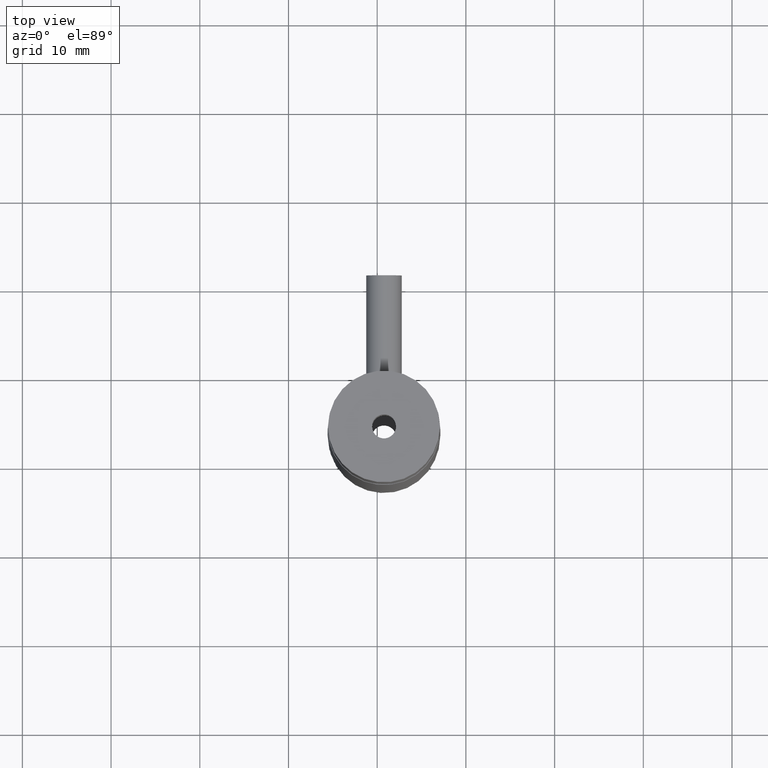
[diagram: clean part render]
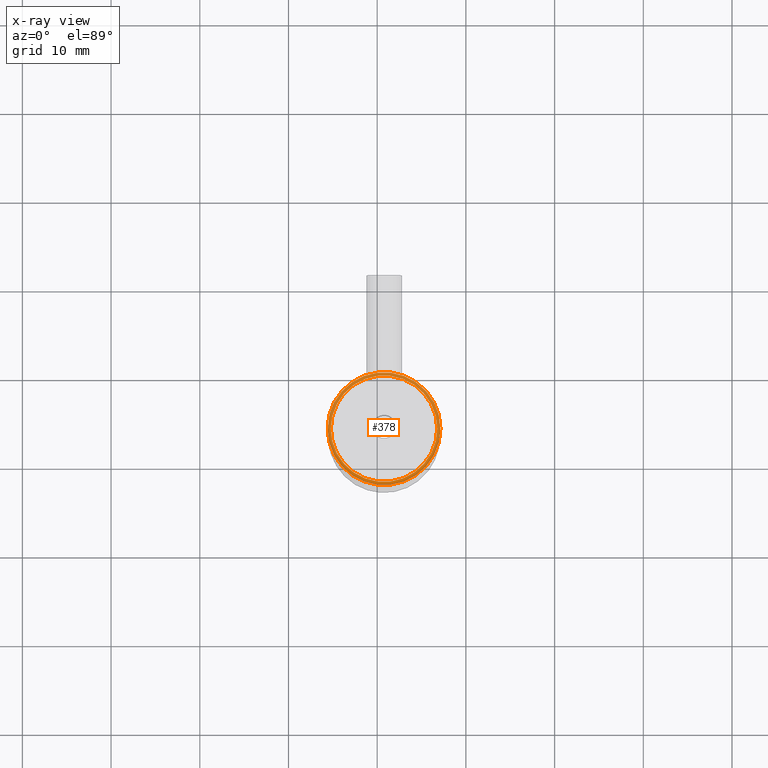
[diagram: x-ray — body ghosted, one internal face saturated and labeled with its STEP entity id]
A machine part, top view, then the same camera in x-ray: the body is ghosted and one INTERNAL B-rep face — a face not visible from any outside direction — is saturated and labeled: STEP entity #378.
In plain terms, the highlighted planar face has unit normal (-0, -0, 1).
Its self-contained STEP definition (entity closure, byte-faithful):
#327 = VERTEX_POINT ( 'NONE', #1788 ) ;
#329 = EDGE_CURVE ( 'NONE', #330, #327, #1787, .T. ) ;
#330 = VERTEX_POINT ( 'NONE', #1782 ) ;
#378 = ADVANCED_FACE ( 'NONE', ( #1948, #1947 ), #1985, .T. ) ;
#379 = EDGE_LOOP ( 'NONE', ( #380, #384 ) ) ;
#380 = ORIENTED_EDGE ( 'NONE', *, *, #381, .F. ) ;
#381 = EDGE_CURVE ( 'NONE', #382, #383, #1980, .T. ) ;
#382 = VERTEX_POINT ( 'NONE', #1975 ) ;
#383 = VERTEX_POINT ( 'NONE', #1974 ) ;
#384 = ORIENTED_EDGE ( 'NONE', *, *, #385, .F. ) ;
#385 = EDGE_CURVE ( 'NONE', #383, #382, #1973, .T. ) ;
#386 = EDGE_LOOP ( 'NONE', ( #387, #388 ) ) ;
#387 = ORIENTED_EDGE ( 'NONE', *, *, #329, .T. ) ;
#388 = ORIENTED_EDGE ( 'NONE', *, *, #389, .T. ) ;
#389 = EDGE_CURVE ( 'NONE', #327, #330, #1967, .T. ) ;
#1782 = CARTESIAN_POINT ( 'NONE',  ( 0.2801849550582926600, -0.2577627768316031500, -0.8606097516386622700 ) ) ;
#1783 = DIRECTION ( 'NONE',  ( 1.000000000000000000, 0.0000000000000000000, 0.0000000000000000000 ) ) ;
#1784 = DIRECTION ( 'NONE',  ( 0.0000000000000000000, -4.930380657631323800E-032, 1.000000000000000000 ) ) ;
#1785 = CARTESIAN_POINT ( 'NONE',  ( 0.03018495505829254000, -0.2577627768316031500, -0.8606097516386622700 ) ) ;
#1786 = AXIS2_PLACEMENT_3D ( 'NONE', #1785, #1784, #1783 ) ;
#1787 = CIRCLE ( 'NONE', #1786, 0.2500000000000001100 ) ;
#1788 = CARTESIAN_POINT ( 'NONE',  ( -0.2198150449417075600, -0.2577627768316031500, -0.8606097516386622700 ) ) ;
#1947 = FACE_OUTER_BOUND ( 'NONE', #386, .T. ) ;
#1948 = FACE_BOUND ( 'NONE', #379, .T. ) ;
#1963 = DIRECTION ( 'NONE',  ( 1.000000000000000000, 0.0000000000000000000, 0.0000000000000000000 ) ) ;
#1964 = DIRECTION ( 'NONE',  ( 0.0000000000000000000, -4.930380657631323800E-032, 1.000000000000000000 ) ) ;
#1965 = CARTESIAN_POINT ( 'NONE',  ( 0.03018495505829254000, -0.2577627768316031500, -0.8606097516386622700 ) ) ;
#1966 = AXIS2_PLACEMENT_3D ( 'NONE', #1965, #1964, #1963 ) ;
#1967 = CIRCLE ( 'NONE', #1966, 0.2500000000000001100 ) ;
#1969 = DIRECTION ( 'NONE',  ( 1.000000000000000000, 0.0000000000000000000, 0.0000000000000000000 ) ) ;
#1970 = DIRECTION ( 'NONE',  ( 0.0000000000000000000, -4.930380657631323800E-032, 1.000000000000000000 ) ) ;
#1971 = CARTESIAN_POINT ( 'NONE',  ( 0.03018495505829254000, -0.2577627768316031500, -0.8606097516386622700 ) ) ;
#1972 = AXIS2_PLACEMENT_3D ( 'NONE', #1971, #1970, #1969 ) ;
#1973 = CIRCLE ( 'NONE', #1972, 0.2362204724409448500 ) ;
#1974 = CARTESIAN_POINT ( 'NONE',  ( -0.2060355173826523300, -0.2577627768316031500, -0.8606097516386622700 ) ) ;
#1975 = CARTESIAN_POINT ( 'NONE',  ( 0.2664054274992374000, -0.2577627768316031500, -0.8606097516386622700 ) ) ;
#1976 = DIRECTION ( 'NONE',  ( 1.000000000000000000, 0.0000000000000000000, 0.0000000000000000000 ) ) ;
#1977 = DIRECTION ( 'NONE',  ( 0.0000000000000000000, -4.930380657631323800E-032, 1.000000000000000000 ) ) ;
#1978 = CARTESIAN_POINT ( 'NONE',  ( 0.03018495505829254000, -0.2577627768316031500, -0.8606097516386622700 ) ) ;
#1979 = AXIS2_PLACEMENT_3D ( 'NONE', #1978, #1977, #1976 ) ;
#1980 = CIRCLE ( 'NONE', #1979, 0.2362204724409448500 ) ;
#1981 = DIRECTION ( 'NONE',  ( 1.000000000000000000, -9.045950685202959200E-032, 0.0000000000000000000 ) ) ;
#1982 = DIRECTION ( 'NONE',  ( -4.459998028821149000E-063, -4.930380657631323800E-032, 1.000000000000000000 ) ) ;
#1983 = CARTESIAN_POINT ( 'NONE',  ( 0.03018495505829254000, -0.2577627768316031500, -0.8606097516386622700 ) ) ;
#1984 = AXIS2_PLACEMENT_3D ( 'NONE', #1983, #1982, #1981 ) ;
#1985 = PLANE ( 'NONE',  #1984 ) ;